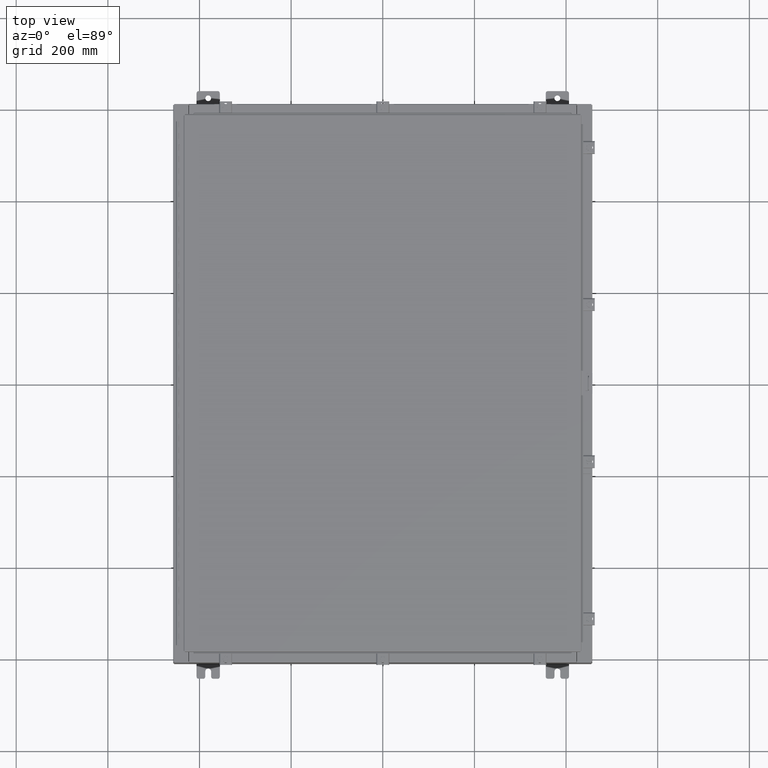
[diagram: clean part render]
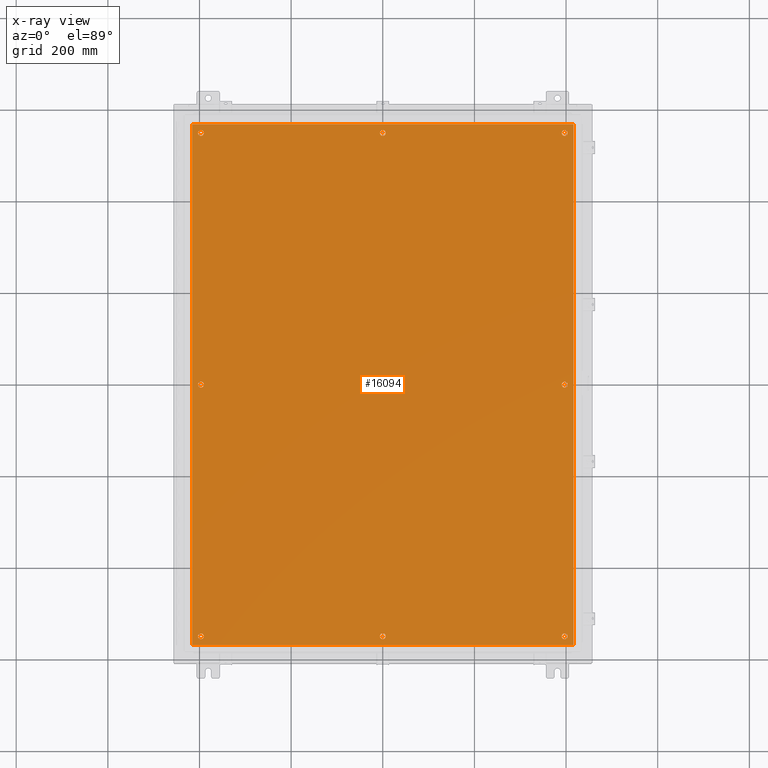
[diagram: x-ray — body ghosted, one internal face saturated and labeled with its STEP entity id]
A machine part, top view, then the same camera in x-ray: the body is ghosted and one INTERNAL B-rep face — a face not visible from any outside direction — is saturated and labeled: STEP entity #16094.
In plain terms, the highlighted planar face has unit normal (0, 0, -1).
Its self-contained STEP definition (entity closure, byte-faithful):
#959 = AXIS2_PLACEMENT_3D ( 'NONE', #17311, #47453, #21742 ) ;
#1376 = DIRECTION ( 'NONE',  ( -1.000000000000000000, 0.0000000000000000000, 0.0000000000000000000 ) ) ;
#1560 = CIRCLE ( 'NONE', #959, 0.2499999999999987000 ) ;
#1741 = ORIENTED_EDGE ( 'NONE', *, *, #42636, .T. ) ;
#1987 = ORIENTED_EDGE ( 'NONE', *, *, #37862, .T. ) ;
#2621 = CARTESIAN_POINT ( 'NONE',  ( 15.62500000000000200, 2.997136362123521200E-015, -0.1039999999999999800 ) ) ;
#2667 = AXIS2_PLACEMENT_3D ( 'NONE', #4960, #35132, #9257 ) ;
#3017 = DIRECTION ( 'NONE',  ( -1.000000000000000000, 0.0000000000000000000, 0.0000000000000000000 ) ) ;
#3236 = CARTESIAN_POINT ( 'NONE',  ( -0.2499999999999998600, 21.62500000000000400, -0.1039999999999999800 ) ) ;
#3247 = FACE_OUTER_BOUND ( 'NONE', #54115, .T. ) ;
#3737 = CARTESIAN_POINT ( 'NONE',  ( 16.38300000000000600, -22.38300000000000300, -0.1040000000000009100 ) ) ;
#3771 = DIRECTION ( 'NONE',  ( -0.0000000000000000000, -0.0000000000000000000, 1.000000000000000000 ) ) ;
#4098 = CIRCLE ( 'NONE', #42696, 0.2499999999999998600 ) ;
#4104 = CARTESIAN_POINT ( 'NONE',  ( -16.49999999999999600, -22.38300000000000300, -0.1040000000000009400 ) ) ;
#4233 = VERTEX_POINT ( 'NONE', #6191 ) ;
#4574 = ORIENTED_EDGE ( 'NONE', *, *, #15119, .T. ) ;
#4605 = FACE_BOUND ( 'NONE', #53782, .T. ) ;
#4791 = EDGE_CURVE ( 'NONE', #20437, #28700, #45894, .T. ) ;
#4912 = LINE ( 'NONE', #48944, #48020 ) ;
#4960 = CARTESIAN_POINT ( 'NONE',  ( -15.62500000000000400, -21.62500000000000400, -0.1039999999999999800 ) ) ;
#5877 = AXIS2_PLACEMENT_3D ( 'NONE', #20549, #25444, #42563 ) ;
#6012 = CIRCLE ( 'NONE', #13511, 0.2500000000000008900 ) ;
#6191 = CARTESIAN_POINT ( 'NONE',  ( 15.87500000000000200, 21.62500000000000400, -0.1039999999999999800 ) ) ;
#6538 = AXIS2_PLACEMENT_3D ( 'NONE', #10982, #34875, #34463 ) ;
#7014 = CARTESIAN_POINT ( 'NONE',  ( 16.38300000000000600, 22.38300000000000300, -0.1040000000000009100 ) ) ;
#7416 = CARTESIAN_POINT ( 'NONE',  ( 15.62500000000000400, -21.62500000000000400, -0.1039999999999999800 ) ) ;
#7847 = CARTESIAN_POINT ( 'NONE',  ( 15.87500000000000200, -21.62500000000000400, -0.1039999999999999800 ) ) ;
#7991 = DIRECTION ( 'NONE',  ( -1.000000000000000000, 0.0000000000000000000, -0.0000000000000000000 ) ) ;
#8488 = ORIENTED_EDGE ( 'NONE', *, *, #12258, .F. ) ;
#8748 = VERTEX_POINT ( 'NONE', #24932 ) ;
#9257 = DIRECTION ( 'NONE',  ( -1.000000000000000000, 0.0000000000000000000, 0.0000000000000000000 ) ) ;
#9463 = VERTEX_POINT ( 'NONE', #33549 ) ;
#10433 = CIRCLE ( 'NONE', #46804, 0.2499999999999998600 ) ;
#10499 = DIRECTION ( 'NONE',  ( -1.000000000000000000, 0.0000000000000000000, 0.0000000000000000000 ) ) ;
#10732 = VERTEX_POINT ( 'NONE', #49586 ) ;
#10817 = ORIENTED_EDGE ( 'NONE', *, *, #37616, .F. ) ;
#10919 = CIRCLE ( 'NONE', #44862, 0.2499999999999987000 ) ;
#10982 = CARTESIAN_POINT ( 'NONE',  ( -15.62500000000000500, 21.62500000000000400, -0.1039999999999999800 ) ) ;
#11066 = DIRECTION ( 'NONE',  ( -0.0000000000000000000, -0.0000000000000000000, 1.000000000000000000 ) ) ;
#11254 = CARTESIAN_POINT ( 'NONE',  ( 0.0000000000000000000, -21.62500000000000400, -0.1039999999999999800 ) ) ;
#11784 = DIRECTION ( 'NONE',  ( -1.000000000000000000, 0.0000000000000000000, 0.0000000000000000000 ) ) ;
#11928 = CARTESIAN_POINT ( 'NONE',  ( -16.38299999999999600, -22.38300000000000300, -0.1040000000000009400 ) ) ;
#12258 = EDGE_CURVE ( 'NONE', #28700, #50278, #21252, .T. ) ;
#12871 = CARTESIAN_POINT ( 'NONE',  ( 0.0000000000000000000, 0.0000000000000000000, -0.1039999999999999800 ) ) ;
#12960 = EDGE_CURVE ( 'NONE', #51775, #8748, #33256, .T. ) ;
#13178 = CARTESIAN_POINT ( 'NONE',  ( -15.62500000000000200, -8.298848852119578500E-016, -0.1039999999999999800 ) ) ;
#13511 = AXIS2_PLACEMENT_3D ( 'NONE', #37435, #29766, #53338 ) ;
#13573 = CARTESIAN_POINT ( 'NONE',  ( -15.37500000000000500, -21.62500000000000400, -0.1039999999999999800 ) ) ;
#13791 = EDGE_CURVE ( 'NONE', #30592, #25420, #10919, .T. ) ;
#13963 = ORIENTED_EDGE ( 'NONE', *, *, #16532, .F. ) ;
#13999 = DIRECTION ( 'NONE',  ( -0.0000000000000000000, -0.0000000000000000000, 1.000000000000000000 ) ) ;
#14006 = DIRECTION ( 'NONE',  ( -1.000000000000000000, 0.0000000000000000000, 0.0000000000000000000 ) ) ;
#14466 = CIRCLE ( 'NONE', #37461, 0.2500000000000008900 ) ;
#14500 = DIRECTION ( 'NONE',  ( 0.0000000000000000000, -1.000000000000000000, 0.0000000000000000000 ) ) ;
#14663 = FACE_BOUND ( 'NONE', #37579, .T. ) ;
#14825 = EDGE_CURVE ( 'NONE', #9463, #4233, #20973, .T. ) ;
#15119 = EDGE_CURVE ( 'NONE', #8748, #51775, #6012, .T. ) ;
#15264 = VERTEX_POINT ( 'NONE', #46370 ) ;
#16043 = FACE_BOUND ( 'NONE', #49023, .T. ) ;
#16094 = ADVANCED_FACE ( 'NONE', ( #4605, #40367, #50334, #16043, #49034, #37629, #26318, #14663, #3247 ), #52065, .T. ) ;
#16292 = CARTESIAN_POINT ( 'NONE',  ( -16.38299999999999600, 22.38300000000000300, -0.1040000000000009100 ) ) ;
#16359 = CIRCLE ( 'NONE', #41622, 0.2500000000000011700 ) ;
#16403 = DIRECTION ( 'NONE',  ( -0.0000000000000000000, -0.0000000000000000000, 1.000000000000000000 ) ) ;
#16532 = EDGE_CURVE ( 'NONE', #50278, #26522, #24930, .T. ) ;
#16988 = DIRECTION ( 'NONE',  ( 1.000000000000000000, -0.0000000000000000000, -0.0000000000000000000 ) ) ;
#17162 = ORIENTED_EDGE ( 'NONE', *, *, #24345, .T. ) ;
#17311 = CARTESIAN_POINT ( 'NONE',  ( 15.62500000000000400, -21.62500000000000400, -0.1039999999999999800 ) ) ;
#17525 = DIRECTION ( 'NONE',  ( -1.000000000000000000, 0.0000000000000000000, 0.0000000000000000000 ) ) ;
#18091 = DIRECTION ( 'NONE',  ( -0.0000000000000000000, -0.0000000000000000000, 1.000000000000000000 ) ) ;
#18244 = VERTEX_POINT ( 'NONE', #37776 ) ;
#18360 = ORIENTED_EDGE ( 'NONE', *, *, #37908, .T. ) ;
#18856 = VERTEX_POINT ( 'NONE', #42699 ) ;
#19425 = ORIENTED_EDGE ( 'NONE', *, *, #13791, .T. ) ;
#19652 = ORIENTED_EDGE ( 'NONE', *, *, #14825, .T. ) ;
#19969 = CIRCLE ( 'NONE', #32433, 0.2500000000000008900 ) ;
#20437 = VERTEX_POINT ( 'NONE', #11928 ) ;
#20549 = CARTESIAN_POINT ( 'NONE',  ( 15.62500000000000400, 21.62500000000000400, -0.1039999999999999800 ) ) ;
#20973 = CIRCLE ( 'NONE', #5877, 0.2499999999999987000 ) ;
#21252 = LINE ( 'NONE', #52999, #42787 ) ;
#21742 = DIRECTION ( 'NONE',  ( -1.000000000000000000, 0.0000000000000000000, 0.0000000000000000000 ) ) ;
#22278 = CARTESIAN_POINT ( 'NONE',  ( -15.62500000000000400, -21.62500000000000400, -0.1039999999999999800 ) ) ;
#23206 = CIRCLE ( 'NONE', #25095, 0.2499999999999987000 ) ;
#23209 = EDGE_CURVE ( 'NONE', #54804, #34419, #36871, .T. ) ;
#23603 = CARTESIAN_POINT ( 'NONE',  ( -15.87500000000000700, 21.62500000000000400, -0.1039999999999999800 ) ) ;
#24345 = EDGE_CURVE ( 'NONE', #27728, #15264, #14466, .T. ) ;
#24572 = CIRCLE ( 'NONE', #53640, 0.2499999999999987000 ) ;
#24930 = LINE ( 'NONE', #26058, #26269 ) ;
#24932 = CARTESIAN_POINT ( 'NONE',  ( -15.37500000000000500, 21.62500000000000400, -0.1039999999999999800 ) ) ;
#25026 = DIRECTION ( 'NONE',  ( -0.0000000000000000000, -0.0000000000000000000, 1.000000000000000000 ) ) ;
#25095 = AXIS2_PLACEMENT_3D ( 'NONE', #7416, #37590, #11784 ) ;
#25420 = VERTEX_POINT ( 'NONE', #13573 ) ;
#25444 = DIRECTION ( 'NONE',  ( -0.0000000000000000000, -0.0000000000000000000, 1.000000000000000000 ) ) ;
#25722 = ORIENTED_EDGE ( 'NONE', *, *, #49313, .T. ) ;
#26058 = CARTESIAN_POINT ( 'NONE',  ( 16.50000000000000700, 22.38300000000000300, -0.1040000000000009400 ) ) ;
#26269 = VECTOR ( 'NONE', #31377, 39.37007874015748100 ) ;
#26318 = FACE_BOUND ( 'NONE', #48765, .T. ) ;
#26457 = EDGE_CURVE ( 'NONE', #51273, #18856, #23206, .T. ) ;
#26522 = VERTEX_POINT ( 'NONE', #16292 ) ;
#27253 = DIRECTION ( 'NONE',  ( -0.0000000000000000000, -0.0000000000000000000, 1.000000000000000000 ) ) ;
#27366 = CARTESIAN_POINT ( 'NONE',  ( 0.2500000000000011700, -21.62500000000000400, -0.1039999999999999800 ) ) ;
#27728 = VERTEX_POINT ( 'NONE', #45035 ) ;
#27980 = EDGE_CURVE ( 'NONE', #32986, #47411, #4098, .T. ) ;
#28452 = CARTESIAN_POINT ( 'NONE',  ( -15.87500000000000200, -21.62500000000000400, -0.1039999999999999800 ) ) ;
#28700 = VERTEX_POINT ( 'NONE', #3737 ) ;
#28824 = ORIENTED_EDGE ( 'NONE', *, *, #27980, .T. ) ;
#28868 = DIRECTION ( 'NONE',  ( -0.0000000000000000000, -0.0000000000000000000, 1.000000000000000000 ) ) ;
#29368 = ORIENTED_EDGE ( 'NONE', *, *, #26457, .T. ) ;
#29626 = CARTESIAN_POINT ( 'NONE',  ( -15.62500000000000200, -8.298848852119578500E-016, -0.1039999999999999800 ) ) ;
#29766 = DIRECTION ( 'NONE',  ( -0.0000000000000000000, -0.0000000000000000000, 1.000000000000000000 ) ) ;
#30592 = VERTEX_POINT ( 'NONE', #28452 ) ;
#31377 = DIRECTION ( 'NONE',  ( -1.000000000000000000, -0.0000000000000000000, -0.0000000000000000000 ) ) ;
#32433 = AXIS2_PLACEMENT_3D ( 'NONE', #13178, #43369, #17525 ) ;
#32986 = VERTEX_POINT ( 'NONE', #3236 ) ;
#33256 = CIRCLE ( 'NONE', #6538, 0.2500000000000008900 ) ;
#33549 = CARTESIAN_POINT ( 'NONE',  ( 15.37500000000000500, 21.62500000000000400, -0.1039999999999999800 ) ) ;
#33728 = DIRECTION ( 'NONE',  ( -0.0000000000000000000, -0.0000000000000000000, 1.000000000000000000 ) ) ;
#33755 = ORIENTED_EDGE ( 'NONE', *, *, #4791, .F. ) ;
#33863 = CARTESIAN_POINT ( 'NONE',  ( 0.2499999999999998600, 21.62500000000000400, -0.1039999999999999800 ) ) ;
#33908 = DIRECTION ( 'NONE',  ( -1.000000000000000000, 0.0000000000000000000, 0.0000000000000000000 ) ) ;
#34419 = VERTEX_POINT ( 'NONE', #27366 ) ;
#34463 = DIRECTION ( 'NONE',  ( -1.000000000000000000, 0.0000000000000000000, 0.0000000000000000000 ) ) ;
#34875 = DIRECTION ( 'NONE',  ( -0.0000000000000000000, -0.0000000000000000000, 1.000000000000000000 ) ) ;
#35132 = DIRECTION ( 'NONE',  ( -0.0000000000000000000, -0.0000000000000000000, 1.000000000000000000 ) ) ;
#36019 = ORIENTED_EDGE ( 'NONE', *, *, #53506, .T. ) ;
#36871 = CIRCLE ( 'NONE', #46737, 0.2500000000000011700 ) ;
#37225 = ORIENTED_EDGE ( 'NONE', *, *, #23209, .T. ) ;
#37435 = CARTESIAN_POINT ( 'NONE',  ( -15.62500000000000500, 21.62500000000000400, -0.1039999999999999800 ) ) ;
#37461 = AXIS2_PLACEMENT_3D ( 'NONE', #2621, #33728, #47998 ) ;
#37579 = EDGE_LOOP ( 'NONE', ( #4574, #48509 ) ) ;
#37590 = DIRECTION ( 'NONE',  ( -0.0000000000000000000, -0.0000000000000000000, 1.000000000000000000 ) ) ;
#37616 = EDGE_CURVE ( 'NONE', #26522, #20437, #4912, .T. ) ;
#37629 = FACE_BOUND ( 'NONE', #50638, .T. ) ;
#37776 = CARTESIAN_POINT ( 'NONE',  ( -15.87500000000000200, -7.992687152332741600E-016, -0.1039999999999999800 ) ) ;
#37862 = EDGE_CURVE ( 'NONE', #4233, #9463, #24572, .T. ) ;
#37908 = EDGE_CURVE ( 'NONE', #18856, #51273, #1560, .T. ) ;
#39223 = CIRCLE ( 'NONE', #2667, 0.2499999999999987000 ) ;
#40286 = ORIENTED_EDGE ( 'NONE', *, *, #49063, .T. ) ;
#40367 = FACE_BOUND ( 'NONE', #45403, .T. ) ;
#40981 = AXIS2_PLACEMENT_3D ( 'NONE', #43912, #18091, #48211 ) ;
#41321 = CIRCLE ( 'NONE', #45819, 0.2500000000000008900 ) ;
#41622 = AXIS2_PLACEMENT_3D ( 'NONE', #54279, #28868, #3017 ) ;
#42261 = CARTESIAN_POINT ( 'NONE',  ( 0.0000000000000000000, 21.62500000000000400, -0.1039999999999999800 ) ) ;
#42563 = DIRECTION ( 'NONE',  ( -1.000000000000000000, 0.0000000000000000000, 0.0000000000000000000 ) ) ;
#42636 = EDGE_CURVE ( 'NONE', #34419, #54804, #16359, .T. ) ;
#42696 = AXIS2_PLACEMENT_3D ( 'NONE', #42261, #16403, #46493 ) ;
#42699 = CARTESIAN_POINT ( 'NONE',  ( 15.37500000000000500, -21.62500000000000400, -0.1039999999999999800 ) ) ;
#42787 = VECTOR ( 'NONE', #44817, 39.37007874015748100 ) ;
#42841 = ORIENTED_EDGE ( 'NONE', *, *, #44386, .T. ) ;
#43270 = VECTOR ( 'NONE', #16988, 39.37007874015748100 ) ;
#43369 = DIRECTION ( 'NONE',  ( -0.0000000000000000000, -0.0000000000000000000, 1.000000000000000000 ) ) ;
#43698 = EDGE_CURVE ( 'NONE', #25420, #30592, #39223, .T. ) ;
#43894 = AXIS2_PLACEMENT_3D ( 'NONE', #12871, #51399, #7991 ) ;
#43912 = CARTESIAN_POINT ( 'NONE',  ( 15.62500000000000200, 2.997136362123521200E-015, -0.1039999999999999800 ) ) ;
#44386 = EDGE_CURVE ( 'NONE', #15264, #27728, #46465, .T. ) ;
#44558 = ORIENTED_EDGE ( 'NONE', *, *, #43698, .T. ) ;
#44817 = DIRECTION ( 'NONE',  ( 0.0000000000000000000, 1.000000000000000000, 0.0000000000000000000 ) ) ;
#44862 = AXIS2_PLACEMENT_3D ( 'NONE', #22278, #13999, #14006 ) ;
#45035 = CARTESIAN_POINT ( 'NONE',  ( 15.87500000000000200, 2.997136362123521200E-015, -0.1039999999999999800 ) ) ;
#45403 = EDGE_LOOP ( 'NONE', ( #25722, #28824 ) ) ;
#45819 = AXIS2_PLACEMENT_3D ( 'NONE', #29626, #3771, #33908 ) ;
#45894 = LINE ( 'NONE', #4104, #43270 ) ;
#46370 = CARTESIAN_POINT ( 'NONE',  ( 15.37500000000000000, 3.027752532102204900E-015, -0.1039999999999999800 ) ) ;
#46465 = CIRCLE ( 'NONE', #40981, 0.2500000000000008900 ) ;
#46493 = DIRECTION ( 'NONE',  ( -1.000000000000000000, 0.0000000000000000000, 0.0000000000000000000 ) ) ;
#46694 = CARTESIAN_POINT ( 'NONE',  ( -0.2500000000000011700, -21.62500000000000400, -0.1039999999999999800 ) ) ;
#46737 = AXIS2_PLACEMENT_3D ( 'NONE', #11254, #11066, #10499 ) ;
#46804 = AXIS2_PLACEMENT_3D ( 'NONE', #52696, #27253, #1376 ) ;
#47411 = VERTEX_POINT ( 'NONE', #33863 ) ;
#47453 = DIRECTION ( 'NONE',  ( -0.0000000000000000000, -0.0000000000000000000, 1.000000000000000000 ) ) ;
#47998 = DIRECTION ( 'NONE',  ( -1.000000000000000000, 0.0000000000000000000, 0.0000000000000000000 ) ) ;
#48020 = VECTOR ( 'NONE', #14500, 39.37007874015748100 ) ;
#48211 = DIRECTION ( 'NONE',  ( -1.000000000000000000, 0.0000000000000000000, 0.0000000000000000000 ) ) ;
#48509 = ORIENTED_EDGE ( 'NONE', *, *, #12960, .T. ) ;
#48765 = EDGE_LOOP ( 'NONE', ( #1987, #19652 ) ) ;
#48944 = CARTESIAN_POINT ( 'NONE',  ( -16.38299999999999600, 22.38300000000000300, -0.1040000000000009100 ) ) ;
#49023 = EDGE_LOOP ( 'NONE', ( #40286, #36019 ) ) ;
#49034 = FACE_BOUND ( 'NONE', #53734, .T. ) ;
#49063 = EDGE_CURVE ( 'NONE', #10732, #18244, #19969, .T. ) ;
#49313 = EDGE_CURVE ( 'NONE', #47411, #32986, #10433, .T. ) ;
#49586 = CARTESIAN_POINT ( 'NONE',  ( -15.37500000000000000, -8.298848852119578500E-016, -0.1039999999999999800 ) ) ;
#50278 = VERTEX_POINT ( 'NONE', #7014 ) ;
#50334 = FACE_BOUND ( 'NONE', #50474, .T. ) ;
#50474 = EDGE_LOOP ( 'NONE', ( #17162, #42841 ) ) ;
#50557 = CARTESIAN_POINT ( 'NONE',  ( 15.62500000000000400, 21.62500000000000400, -0.1039999999999999800 ) ) ;
#50638 = EDGE_LOOP ( 'NONE', ( #29368, #18360 ) ) ;
#51273 = VERTEX_POINT ( 'NONE', #7847 ) ;
#51399 = DIRECTION ( 'NONE',  ( 0.0000000000000000000, 0.0000000000000000000, -1.000000000000000000 ) ) ;
#51775 = VERTEX_POINT ( 'NONE', #23603 ) ;
#52065 = PLANE ( 'NONE',  #43894 ) ;
#52696 = CARTESIAN_POINT ( 'NONE',  ( 0.0000000000000000000, 21.62500000000000400, -0.1039999999999999800 ) ) ;
#52999 = CARTESIAN_POINT ( 'NONE',  ( 16.38300000000000600, -22.38300000000000300, -0.1040000000000009100 ) ) ;
#53338 = DIRECTION ( 'NONE',  ( -1.000000000000000000, 0.0000000000000000000, 0.0000000000000000000 ) ) ;
#53506 = EDGE_CURVE ( 'NONE', #18244, #10732, #41321, .T. ) ;
#53640 = AXIS2_PLACEMENT_3D ( 'NONE', #50557, #25026, #54646 ) ;
#53734 = EDGE_LOOP ( 'NONE', ( #44558, #19425 ) ) ;
#53782 = EDGE_LOOP ( 'NONE', ( #1741, #37225 ) ) ;
#54115 = EDGE_LOOP ( 'NONE', ( #33755, #10817, #13963, #8488 ) ) ;
#54279 = CARTESIAN_POINT ( 'NONE',  ( 0.0000000000000000000, -21.62500000000000400, -0.1039999999999999800 ) ) ;
#54646 = DIRECTION ( 'NONE',  ( -1.000000000000000000, 0.0000000000000000000, 0.0000000000000000000 ) ) ;
#54804 = VERTEX_POINT ( 'NONE', #46694 ) ;